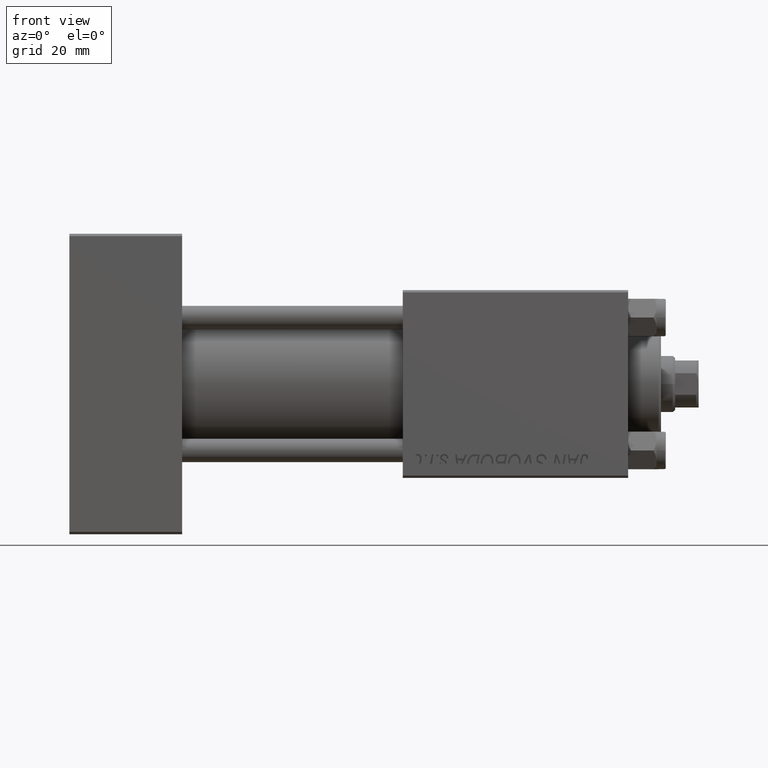
[diagram: clean part render]
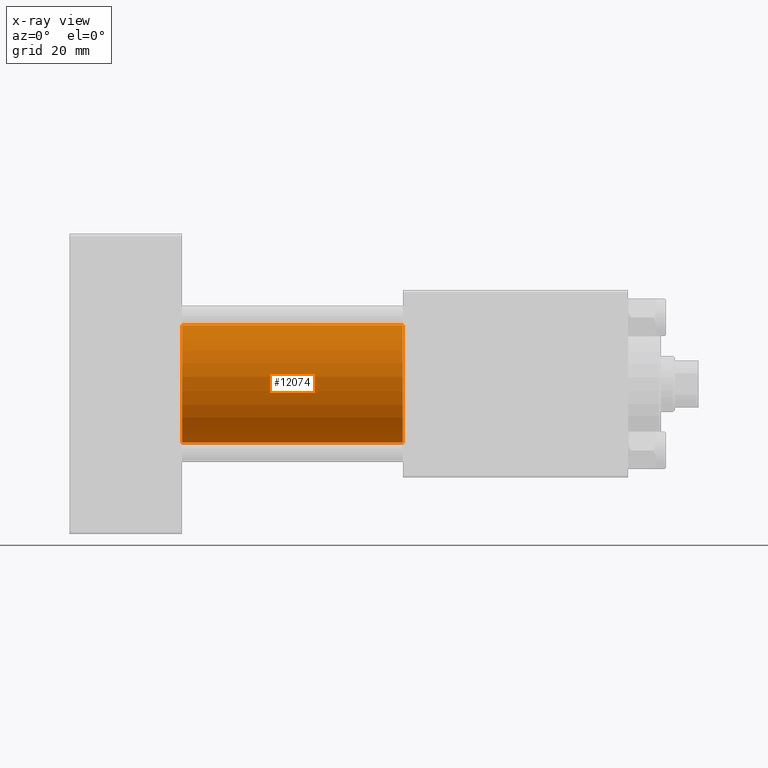
[diagram: x-ray — body ghosted, one internal face saturated and labeled with its STEP entity id]
A machine part, front view, then the same camera in x-ray: the body is ghosted and one INTERNAL B-rep face — a face not visible from any outside direction — is saturated and labeled: STEP entity #12074.
In plain terms, the highlighted cylindrical surface (partial cylindrical patch) has radius 12.5 mm, axis along (-1, -0, -0).
Its self-contained STEP definition (entity closure, byte-faithful):
#1302 = AXIS2_PLACEMENT_3D ( 'NONE', #49964, #29992, #34194 ) ;
#2168 = FACE_OUTER_BOUND ( 'NONE', #20670, .T. ) ;
#4085 = CARTESIAN_POINT ( 'NONE',  ( 24.00000000000000000, -2.602085213965210642E-15, 0.000000000000000000 ) ) ;
#6438 = VECTOR ( 'NONE', #9857, 1000.000000000000000 ) ;
#6955 = LINE ( 'NONE', #22977, #6438 ) ;
#7846 = EDGE_CURVE ( 'NONE', #31109, #15288, #18782, .T. ) ;
#9356 = EDGE_CURVE ( 'NONE', #38291, #23572, #10451, .T. ) ;
#9857 = DIRECTION ( 'NONE',  ( -1.000000000000000000, -0.000000000000000000, -0.000000000000000000 ) ) ;
#10103 = DIRECTION ( 'NONE',  ( 0.000000000000000000, 0.000000000000000000, -1.000000000000000000 ) ) ;
#10451 = CIRCLE ( 'NONE', #23006, 12.49999999999999645 ) ;
#11240 = CARTESIAN_POINT ( 'NONE',  ( 71.00000000000001421, -2.602085213965210642E-15, 12.49999999999999645 ) ) ;
#12074 = ADVANCED_FACE ( 'NONE', ( #2168 ), #18188, .F. ) ;
#12244 = EDGE_CURVE ( 'NONE', #31109, #38291, #48356, .T. ) ;
#14604 = CARTESIAN_POINT ( 'NONE',  ( 24.00000000000000000, -2.602085213965210642E-15, 12.49999999999999645 ) ) ;
#14864 = EDGE_CURVE ( 'NONE', #15288, #23572, #6955, .T. ) ;
#15288 = VERTEX_POINT ( 'NONE', #28664 ) ;
#18188 = CYLINDRICAL_SURFACE ( 'NONE', #1302, 12.49999999999999645 ) ;
#18782 = CIRCLE ( 'NONE', #25469, 12.49999999999999645 ) ;
#19426 = ORIENTED_EDGE ( 'NONE', *, *, #9356, .F. ) ;
#19733 = DIRECTION ( 'NONE',  ( -1.000000000000000000, -0.000000000000000000, -0.000000000000000000 ) ) ;
#20621 = DIRECTION ( 'NONE',  ( 0.000000000000000000, 0.000000000000000000, -1.000000000000000000 ) ) ;
#20670 = EDGE_LOOP ( 'NONE', ( #28574, #21993, #19426, #43396 ) ) ;
#21993 = ORIENTED_EDGE ( 'NONE', *, *, #14864, .T. ) ;
#22977 = CARTESIAN_POINT ( 'NONE',  ( 71.00000000000001421, -1.071276715031019515E-15, -12.49999999999999645 ) ) ;
#23006 = AXIS2_PLACEMENT_3D ( 'NONE', #4085, #48206, #20621 ) ;
#23572 = VERTEX_POINT ( 'NONE', #25583 ) ;
#25469 = AXIS2_PLACEMENT_3D ( 'NONE', #42147, #45830, #10103 ) ;
#25583 = CARTESIAN_POINT ( 'NONE',  ( 24.00000000000000000, -1.071276715031019515E-15, -12.49999999999999645 ) ) ;
#28574 = ORIENTED_EDGE ( 'NONE', *, *, #7846, .T. ) ;
#28664 = CARTESIAN_POINT ( 'NONE',  ( 71.00000000000001421, -1.071276715031019515E-15, -12.49999999999999645 ) ) ;
#29992 = DIRECTION ( 'NONE',  ( -1.000000000000000000, -0.000000000000000000, -0.000000000000000000 ) ) ;
#31109 = VERTEX_POINT ( 'NONE', #11240 ) ;
#34194 = DIRECTION ( 'NONE',  ( 0.000000000000000000, 0.000000000000000000, 1.000000000000000000 ) ) ;
#35715 = VECTOR ( 'NONE', #19733, 1000.000000000000000 ) ;
#38291 = VERTEX_POINT ( 'NONE', #14604 ) ;
#40472 = CARTESIAN_POINT ( 'NONE',  ( 71.00000000000001421, -2.602085213965210642E-15, 12.49999999999999645 ) ) ;
#42147 = CARTESIAN_POINT ( 'NONE',  ( 71.00000000000001421, -2.602085213965210642E-15, 0.000000000000000000 ) ) ;
#43396 = ORIENTED_EDGE ( 'NONE', *, *, #12244, .F. ) ;
#45830 = DIRECTION ( 'NONE',  ( 1.000000000000000000, 0.000000000000000000, 0.000000000000000000 ) ) ;
#48206 = DIRECTION ( 'NONE',  ( 1.000000000000000000, 0.000000000000000000, 0.000000000000000000 ) ) ;
#48356 = LINE ( 'NONE', #40472, #35715 ) ;
#49964 = CARTESIAN_POINT ( 'NONE',  ( 71.00000000000001421, -2.602085213965210642E-15, 0.000000000000000000 ) ) ;